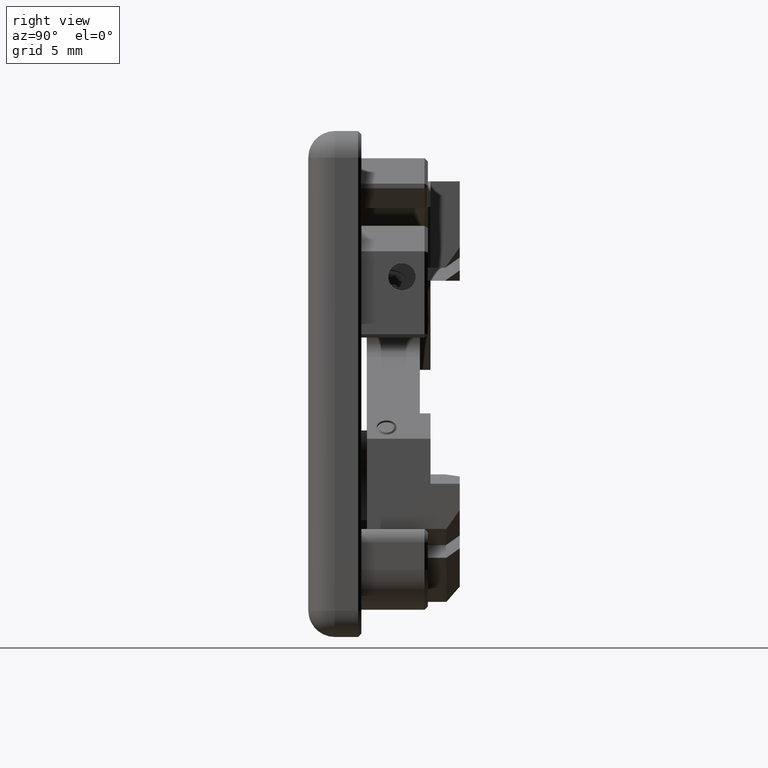
[diagram: clean part render]
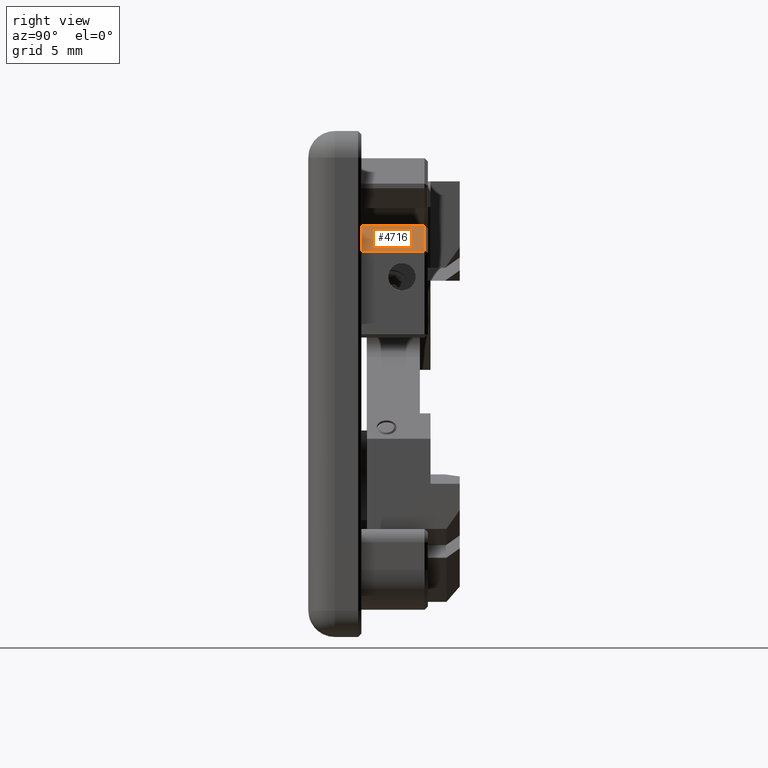
[diagram: same view with one face highlighted and labeled with its STEP entity id]
A machine part, right view. The second image highlights one B-rep face of the part: STEP entity #4716.
In plain terms, the highlighted planar face has unit normal (-0.7071, 0, -0.7071).
Its self-contained STEP definition (entity closure, byte-faithful):
#325 = VECTOR ( 'NONE', #9956, 1000.000000000000000 ) ;
#597 = VECTOR ( 'NONE', #3506, 1000.000000000000114 ) ;
#1069 = ORIENTED_EDGE ( 'NONE', *, *, #11338, .T. ) ;
#1863 = FACE_OUTER_BOUND ( 'NONE', #7371, .T. ) ;
#2030 = VECTOR ( 'NONE', #9055, 1000.000000000000114 ) ;
#2067 = CARTESIAN_POINT ( 'NONE',  ( 15.09099025766969326, -26.99137802864852276, 11.90900974233029963 ) ) ;
#2134 = VERTEX_POINT ( 'NONE', #8696 ) ;
#2280 = EDGE_CURVE ( 'NONE', #2134, #5335, #11417, .T. ) ;
#2523 = CARTESIAN_POINT ( 'NONE',  ( 14.91421356237305140, 6.749999999999992006, 12.08578643762694327 ) ) ;
#3506 = DIRECTION ( 'NONE',  ( 0.7071067811865474617, 0.000000000000000000, -0.7071067811865474617 ) ) ;
#3630 = LINE ( 'NONE', #7099, #325 ) ;
#3816 = CARTESIAN_POINT ( 'NONE',  ( 16.99999999999999289, 6.749999999999992006, 9.999999999999998224 ) ) ;
#3919 = DIRECTION ( 'NONE',  ( 0.000000000000000000, -1.000000000000000000, 0.000000000000000000 ) ) ;
#3943 = CARTESIAN_POINT ( 'NONE',  ( 16.99999999999999289, 2.000000000000001776, 9.999999999999998224 ) ) ;
#4158 = ORIENTED_EDGE ( 'NONE', *, *, #4661, .T. ) ;
#4505 = ORIENTED_EDGE ( 'NONE', *, *, #2280, .T. ) ;
#4661 = EDGE_CURVE ( 'NONE', #5335, #11545, #3630, .T. ) ;
#4716 = ADVANCED_FACE ( 'NONE', ( #1863 ), #11452, .F. ) ;
#5164 = CARTESIAN_POINT ( 'NONE',  ( 15.09099025766969326, 6.749999999999992006, 11.90900974233029963 ) ) ;
#5335 = VERTEX_POINT ( 'NONE', #3943 ) ;
#5361 = DIRECTION ( 'NONE',  ( -0.7071067811865474617, 0.000000000000000000, 0.7071067811865474617 ) ) ;
#5503 = LINE ( 'NONE', #2523, #2030 ) ;
#6283 = CARTESIAN_POINT ( 'NONE',  ( 16.99999999999999289, 2.000000000000001776, 9.999999999999998224 ) ) ;
#6468 = VECTOR ( 'NONE', #3919, 1000.000000000000000 ) ;
#7059 = LINE ( 'NONE', #2067, #6468 ) ;
#7099 = CARTESIAN_POINT ( 'NONE',  ( 16.99999999999999289, -26.99137802864852276, 9.999999999999998224 ) ) ;
#7111 = DIRECTION ( 'NONE',  ( -0.7071067811865475727, 0.000000000000000000, -0.7071067811865475727 ) ) ;
#7371 = EDGE_LOOP ( 'NONE', ( #4158, #8124, #1069, #4505 ) ) ;
#8124 = ORIENTED_EDGE ( 'NONE', *, *, #9470, .T. ) ;
#8297 = VERTEX_POINT ( 'NONE', #5164 ) ;
#8696 = CARTESIAN_POINT ( 'NONE',  ( 15.09099025766969326, 2.000000000000001776, 11.90900974233029963 ) ) ;
#8923 = AXIS2_PLACEMENT_3D ( 'NONE', #11430, #7111, #5361 ) ;
#9055 = DIRECTION ( 'NONE',  ( -0.7071067811865474617, 0.000000000000000000, 0.7071067811865474617 ) ) ;
#9470 = EDGE_CURVE ( 'NONE', #11545, #8297, #5503, .T. ) ;
#9956 = DIRECTION ( 'NONE',  ( -0.000000000000000000, 1.000000000000000000, -0.000000000000000000 ) ) ;
#11338 = EDGE_CURVE ( 'NONE', #8297, #2134, #7059, .T. ) ;
#11417 = LINE ( 'NONE', #6283, #597 ) ;
#11430 = CARTESIAN_POINT ( 'NONE',  ( 16.99999999999999289, -26.99137802864852276, 9.999999999999998224 ) ) ;
#11452 = PLANE ( 'NONE',  #8923 ) ;
#11545 = VERTEX_POINT ( 'NONE', #3816 ) ;